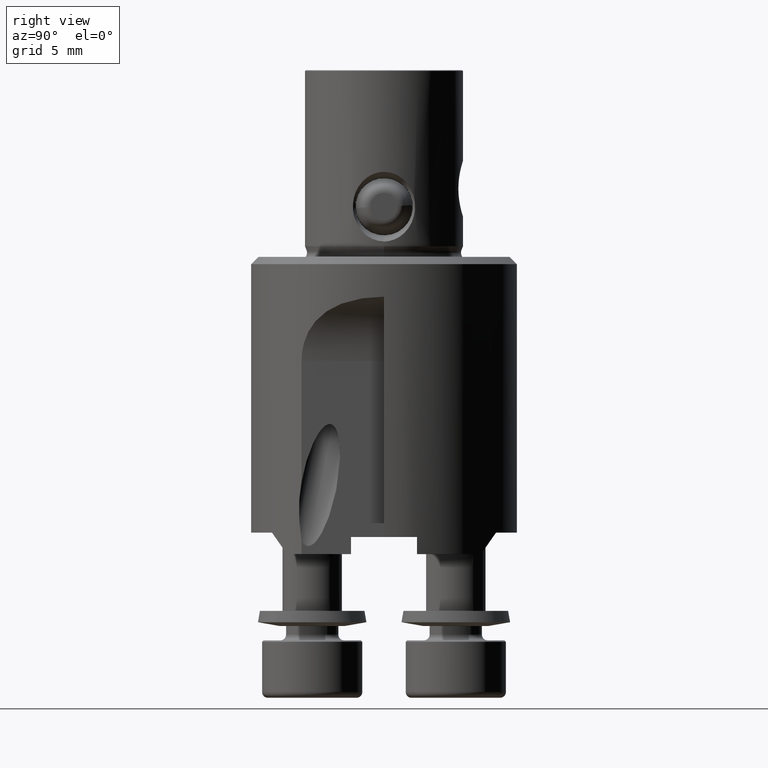
[diagram: clean part render]
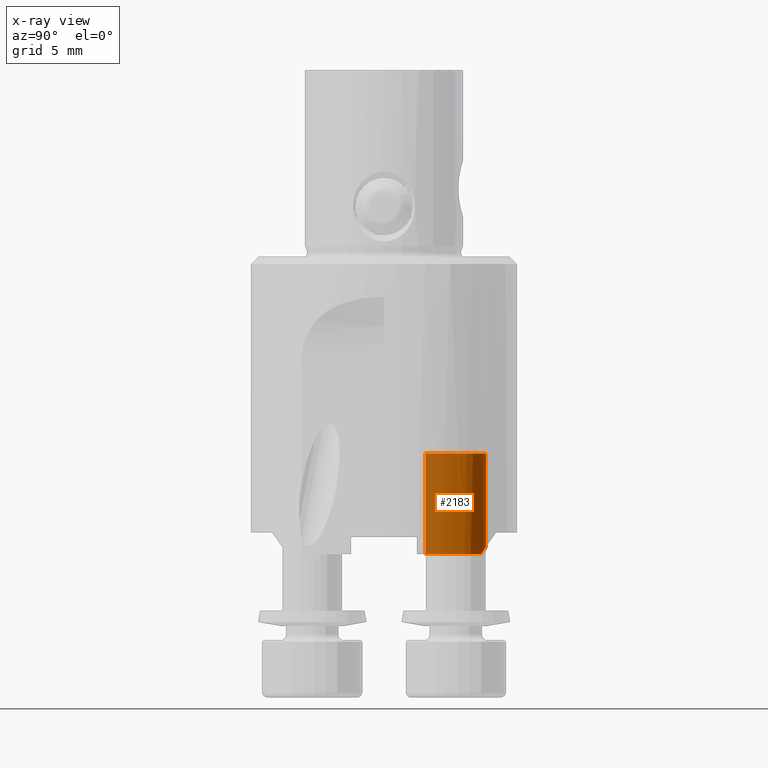
[diagram: x-ray — body ghosted, one internal face saturated and labeled with its STEP entity id]
A machine part, right view, then the same camera in x-ray: the body is ghosted and one INTERNAL B-rep face — a face not visible from any outside direction — is saturated and labeled: STEP entity #2183.
In plain terms, the highlighted cylindrical surface (edge-blend (fillet) strip) has radius 2.1 mm, axis along (0, -0, -1).
Its self-contained STEP definition (entity closure, byte-faithful):
#1537=VERTEX_POINT('NONE',#3746);
#1749=EDGE_CURVE('NONE',#2081,#3007,#3981,.T.);
#1973=EDGE_CURVE('NONE',#1537,#2081,#4230,.T.);
#2081=VERTEX_POINT('NONE',#4350);
#2183=ADVANCED_FACE('NONE',(#4468),#4469,.F.);
#2275=EDGE_CURVE('NONE',#2383,#3087,#4569,.T.);
#2383=VERTEX_POINT('NONE',#4691);
#2509=EDGE_CURVE('NONE',#1537,#3087,#4834,.T.);
#2927=EDGE_CURVE('NONE',#3007,#2383,#5294,.T.);
#3007=VERTEX_POINT('NONE',#5384);
#3087=VERTEX_POINT('NONE',#5467);
#3746=CARTESIAN_POINT('',(-2.57167334302699E-016,7.1,-13.7));
#3981=LINE('',#6779,#6780);
#4230=CIRCLE('',#7165,2.1);
#4350=CARTESIAN_POINT('',(0.0,2.9,-13.7));
#4468=FACE_OUTER_BOUND('',#7520,.T.);
#4469=CYLINDRICAL_SURFACE('',#7521,2.1);
#4569=(B_SPLINE_CURVE(3,(#7689,#7690,#7691,#7692),.UNSPECIFIED.,.F.,.F.)B_SPLINE_CURVE_WITH_KNOTS((4,4),(2.55563898521361,3.14159265358979),.UNSPECIFIED.)RATIONAL_B_SPLINE_CURVE((1.0,0.971592265769409,0.971592265769409,1.0))BOUNDED_CURVE()REPRESENTATION_ITEM('')GEOMETRIC_REPRESENTATION_ITEM()CURVE());
#4691=CARTESIAN_POINT('',(1.16128785350089,6.74968869268544,-20.7));
#4834=LINE('',#8158,#8159);
#5294=CIRCLE('',#8865,2.1);
#5384=CARTESIAN_POINT('',(0.0,2.9,-20.7));
#5467=CARTESIAN_POINT('',(-2.57167334302699E-016,7.1,-20.1997036047195));
#6779=CARTESIAN_POINT('',(0.0,2.9,-26.0916800286943));
#6780=VECTOR('',#10292,1000.0);
#7165=AXIS2_PLACEMENT_3D('',#10585,#10586,#10587);
#7520=EDGE_LOOP('',(#10912,#10913,#10914,#10915,#10916));
#7521=AXIS2_PLACEMENT_3D('',#10917,#10918,#10919);
#7689=CARTESIAN_POINT('',(1.16128785350089,6.74968869268544,-20.7));
#7690=CARTESIAN_POINT('',(0.814560655633314,6.97981539182071,-20.3713450133318));
#7691=CARTESIAN_POINT('',(0.416146665727354,7.1,-20.1997036047195));
#7692=CARTESIAN_POINT('',(-2.57167334302699E-016,7.1,-20.1997036047195));
#8158=CARTESIAN_POINT('',(-2.57167334302699E-016,7.1,-26.0916800286943));
#8159=VECTOR('',#11373,1000.0);
#8865=AXIS2_PLACEMENT_3D('',#11916,#11917,#11918);
#10292=DIRECTION('',(0.0,0.0,-1.0));
#10585=CARTESIAN_POINT('',(0.0,5.0,-13.7));
#10586=DIRECTION('',(0.0,0.0,-1.0));
#10587=DIRECTION('',(0.0,-1.0,0.0));
#10912=ORIENTED_EDGE('',*,*,#1973,.F.);
#10913=ORIENTED_EDGE('',*,*,#2509,.T.);
#10914=ORIENTED_EDGE('',*,*,#2275,.F.);
#10915=ORIENTED_EDGE('',*,*,#2927,.F.);
#10916=ORIENTED_EDGE('',*,*,#1749,.F.);
#10917=CARTESIAN_POINT('',(0.0,5.0,-26.0916800286943));
#10918=DIRECTION('',(0.0,-0.0,-1.0));
#10919=DIRECTION('',(0.0,-1.0,0.0));
#11373=DIRECTION('',(0.0,0.0,-1.0));
#11916=CARTESIAN_POINT('',(0.0,5.0,-20.7));
#11917=DIRECTION('',(0.0,-0.0,1.0));
#11918=DIRECTION('',(0.0,1.0,0.0));